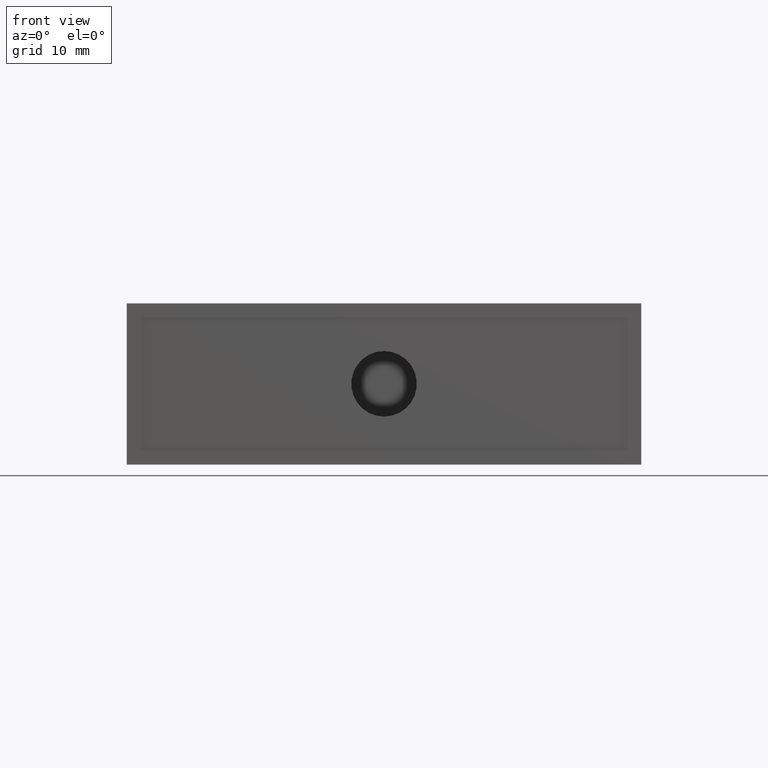
[diagram: clean part render]
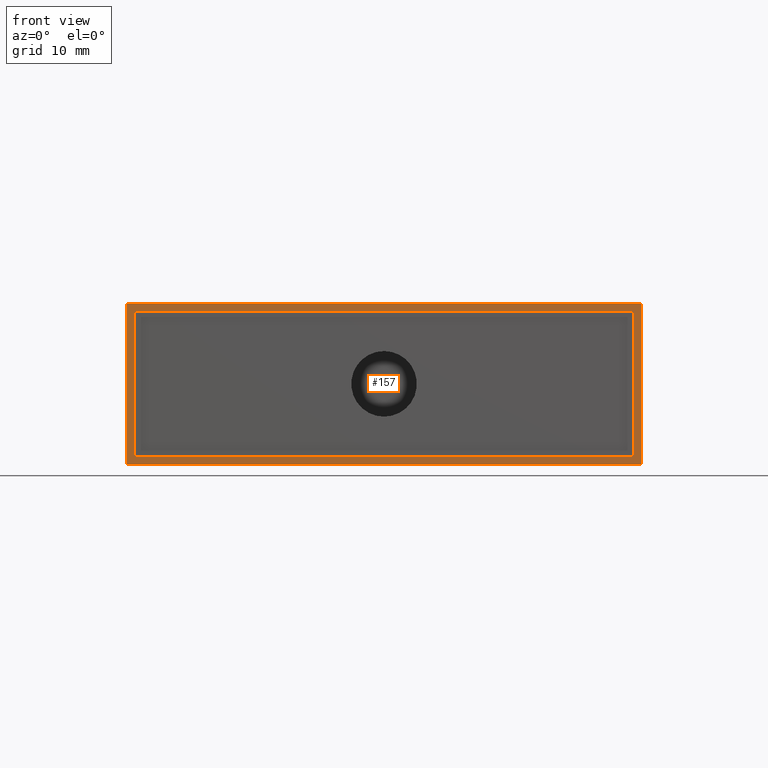
[diagram: same view with one face highlighted and labeled with its STEP entity id]
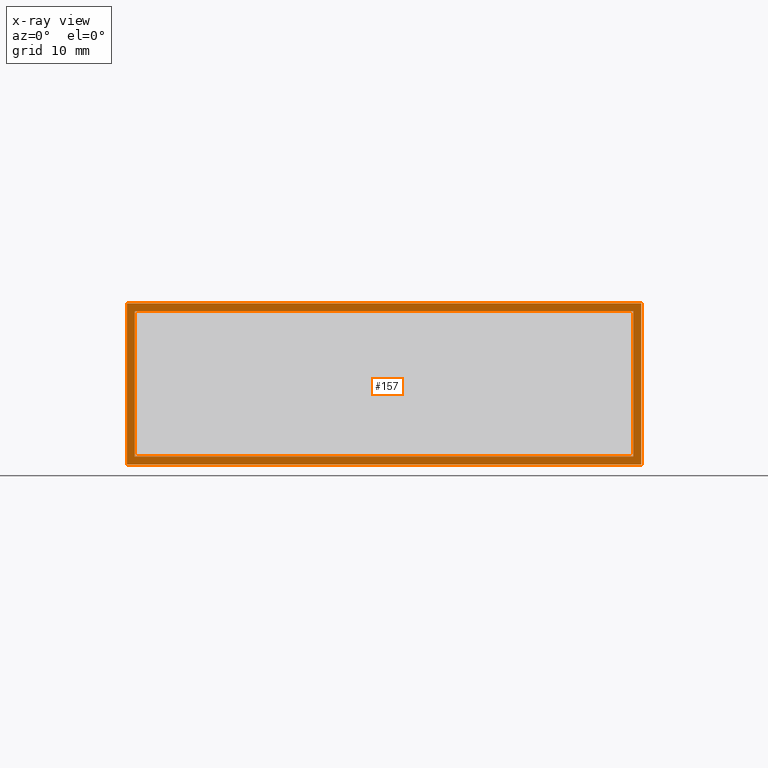
[diagram: x-ray of the same camera — body ghosted, the highlighted face saturated]
A machine part, front view. The second image highlights one B-rep face of the part: STEP entity #157.
The next image is the same camera in x-ray: the body ghosted, the highlighted face saturated — about 0% of this face is hidden behind the body in this view.
In plain terms, the highlighted planar face has unit normal (0, 1, 0).
Its self-contained STEP definition (entity closure, byte-faithful):
#17 = EDGE_CURVE ( 'NONE', #247, #18, #672, .T. ) ;
#18 = VERTEX_POINT ( 'NONE', #668 ) ;
#19 = ORIENTED_EDGE ( 'NONE', *, *, #20, .F. ) ;
#20 = EDGE_CURVE ( 'NONE', #418, #18, #667, .T. ) ;
#25 = VERTEX_POINT ( 'NONE', #658 ) ;
#26 = ORIENTED_EDGE ( 'NONE', *, *, #268, .F. ) ;
#27 = EDGE_LOOP ( 'NONE', ( #421, #19, #419, #254 ) ) ;
#29 = EDGE_CURVE ( 'NONE', #30, #247, #564, .T. ) ;
#30 = VERTEX_POINT ( 'NONE', #560 ) ;
#157 = ADVANCED_FACE ( 'NONE', ( #710, #709 ), #714, .F. ) ;
#158 = EDGE_LOOP ( 'NONE', ( #197, #431, #422, #26 ) ) ;
#197 = ORIENTED_EDGE ( 'NONE', *, *, #198, .F. ) ;
#198 = EDGE_CURVE ( 'NONE', #401, #430, #1066, .T. ) ;
#247 = VERTEX_POINT ( 'NONE', #1103 ) ;
#254 = ORIENTED_EDGE ( 'NONE', *, *, #29, .T. ) ;
#267 = VERTEX_POINT ( 'NONE', #911 ) ;
#268 = EDGE_CURVE ( 'NONE', #430, #25, #1084, .T. ) ;
#298 = EDGE_CURVE ( 'NONE', #30, #418, #959, .T. ) ;
#358 = EDGE_CURVE ( 'NONE', #25, #267, #1331, .T. ) ;
#401 = VERTEX_POINT ( 'NONE', #1232 ) ;
#418 = VERTEX_POINT ( 'NONE', #1277 ) ;
#419 = ORIENTED_EDGE ( 'NONE', *, *, #298, .F. ) ;
#421 = ORIENTED_EDGE ( 'NONE', *, *, #17, .T. ) ;
#422 = ORIENTED_EDGE ( 'NONE', *, *, #358, .F. ) ;
#430 = VERTEX_POINT ( 'NONE', #1179 ) ;
#431 = ORIENTED_EDGE ( 'NONE', *, *, #432, .F. ) ;
#432 = EDGE_CURVE ( 'NONE', #267, #401, #1178, .T. ) ;
#560 = CARTESIAN_POINT ( 'NONE',  ( -1.004999999999999900, -0.9649999999999998600, 0.6300000000000000000 ) ) ;
#561 = DIRECTION ( 'NONE',  ( -0.0000000000000000000, -0.0000000000000000000, -1.000000000000000000 ) ) ;
#562 = VECTOR ( 'NONE', #561, 39.37007874015748100 ) ;
#563 = CARTESIAN_POINT ( 'NONE',  ( -1.004999999999999900, -0.9649999999999998600, 0.6300000000000000000 ) ) ;
#564 = LINE ( 'NONE', #563, #562 ) ;
#658 = CARTESIAN_POINT ( 'NONE',  ( -0.9737499999999997800, -0.9649999999999996400, 0.03124999999999997600 ) ) ;
#664 = DIRECTION ( 'NONE',  ( -0.0000000000000000000, -0.0000000000000000000, -1.000000000000000000 ) ) ;
#665 = VECTOR ( 'NONE', #664, 39.37007874015748100 ) ;
#666 = CARTESIAN_POINT ( 'NONE',  ( 1.005000000000000100, -0.9649999999999998600, 0.6300000000000000000 ) ) ;
#667 = LINE ( 'NONE', #666, #665 ) ;
#668 = CARTESIAN_POINT ( 'NONE',  ( 1.005000000000000100, -0.9649999999999998600, 0.0000000000000000000 ) ) ;
#669 = DIRECTION ( 'NONE',  ( 1.000000000000000000, 0.0000000000000000000, 0.0000000000000000000 ) ) ;
#670 = VECTOR ( 'NONE', #669, 39.37007874015748100 ) ;
#671 = CARTESIAN_POINT ( 'NONE',  ( -1.004999999999999900, -0.9649999999999998600, 0.0000000000000000000 ) ) ;
#672 = LINE ( 'NONE', #671, #670 ) ;
#709 = FACE_OUTER_BOUND ( 'NONE', #27, .T. ) ;
#710 = FACE_BOUND ( 'NONE', #158, .T. ) ;
#714 = PLANE ( 'NONE',  #873 ) ;
#869 = DIRECTION ( 'NONE',  ( 0.0000000000000000000, -0.0000000000000000000, 1.000000000000000000 ) ) ;
#870 = DIRECTION ( 'NONE',  ( 0.0000000000000000000, 1.000000000000000000, 0.0000000000000000000 ) ) ;
#871 = CARTESIAN_POINT ( 'NONE',  ( -1.004999999999999900, -0.9649999999999998600, 0.6300000000000000000 ) ) ;
#873 = AXIS2_PLACEMENT_3D ( 'NONE', #871, #870, #869 ) ;
#911 = CARTESIAN_POINT ( 'NONE',  ( 0.9737500000000000000, -0.9649999999999999700, 0.03125000000000000000 ) ) ;
#956 = DIRECTION ( 'NONE',  ( 1.000000000000000000, 0.0000000000000000000, 0.0000000000000000000 ) ) ;
#957 = VECTOR ( 'NONE', #956, 39.37007874015748100 ) ;
#958 = CARTESIAN_POINT ( 'NONE',  ( -1.004999999999999900, -0.9649999999999998600, 0.6300000000000000000 ) ) ;
#959 = LINE ( 'NONE', #958, #957 ) ;
#1063 = DIRECTION ( 'NONE',  ( -1.000000000000000000, 1.402746081470738500E-016, -0.0000000000000000000 ) ) ;
#1064 = VECTOR ( 'NONE', #1063, 39.37007874015748100 ) ;
#1065 = CARTESIAN_POINT ( 'NONE',  ( -0.9737499999999997800, -0.9649999999999996400, 0.5987500000000000000 ) ) ;
#1066 = LINE ( 'NONE', #1065, #1064 ) ;
#1081 = DIRECTION ( 'NONE',  ( -0.0000000000000000000, -0.0000000000000000000, -1.000000000000000000 ) ) ;
#1082 = VECTOR ( 'NONE', #1081, 39.37007874015748100 ) ;
#1083 = CARTESIAN_POINT ( 'NONE',  ( -0.9737499999999997800, -0.9649999999999996400, 0.03124999999999997600 ) ) ;
#1084 = LINE ( 'NONE', #1083, #1082 ) ;
#1103 = CARTESIAN_POINT ( 'NONE',  ( -1.004999999999999900, -0.9649999999999998600, 0.0000000000000000000 ) ) ;
#1175 = DIRECTION ( 'NONE',  ( -0.0000000000000000000, -0.0000000000000000000, 1.000000000000000000 ) ) ;
#1176 = VECTOR ( 'NONE', #1175, 39.37007874015748100 ) ;
#1177 = CARTESIAN_POINT ( 'NONE',  ( 0.9737500000000000000, -0.9649999999999999700, 0.5987500000000000000 ) ) ;
#1178 = LINE ( 'NONE', #1177, #1176 ) ;
#1179 = CARTESIAN_POINT ( 'NONE',  ( -0.9737499999999997800, -0.9649999999999996400, 0.5987500000000000000 ) ) ;
#1232 = CARTESIAN_POINT ( 'NONE',  ( 0.9737500000000000000, -0.9649999999999998600, 0.5987500000000000000 ) ) ;
#1277 = CARTESIAN_POINT ( 'NONE',  ( 1.005000000000000100, -0.9649999999999998600, 0.6300000000000000000 ) ) ;
#1323 = DIRECTION ( 'NONE',  ( 1.000000000000000000, -1.402746081470738500E-016, 1.315074451378817300E-017 ) ) ;
#1324 = VECTOR ( 'NONE', #1323, 39.37007874015748100 ) ;
#1325 = CARTESIAN_POINT ( 'NONE',  ( 0.9737500000000000000, -0.9649999999999999700, 0.03125000000000000000 ) ) ;
#1331 = LINE ( 'NONE', #1325, #1324 ) ;